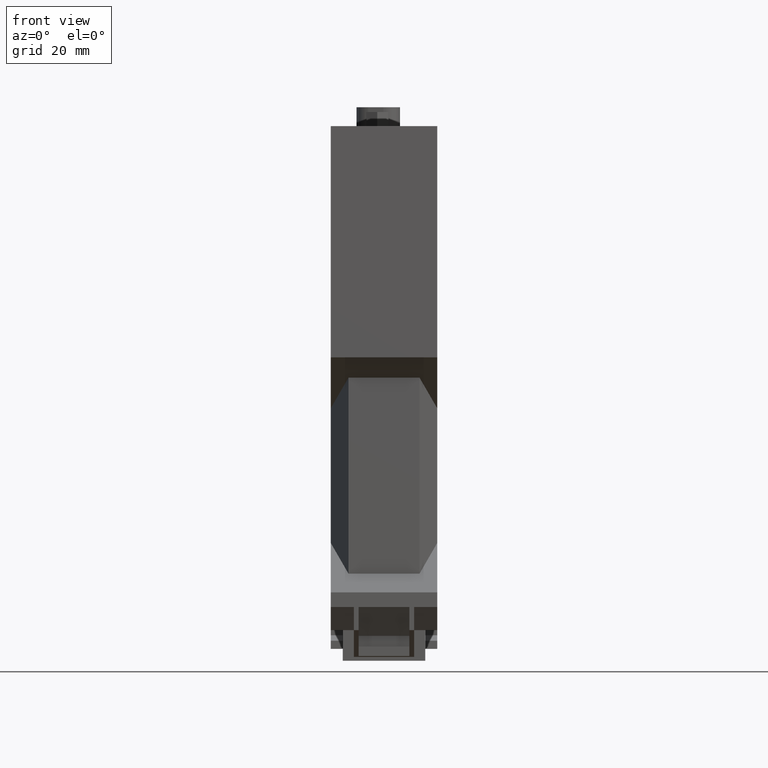
[diagram: clean part render]
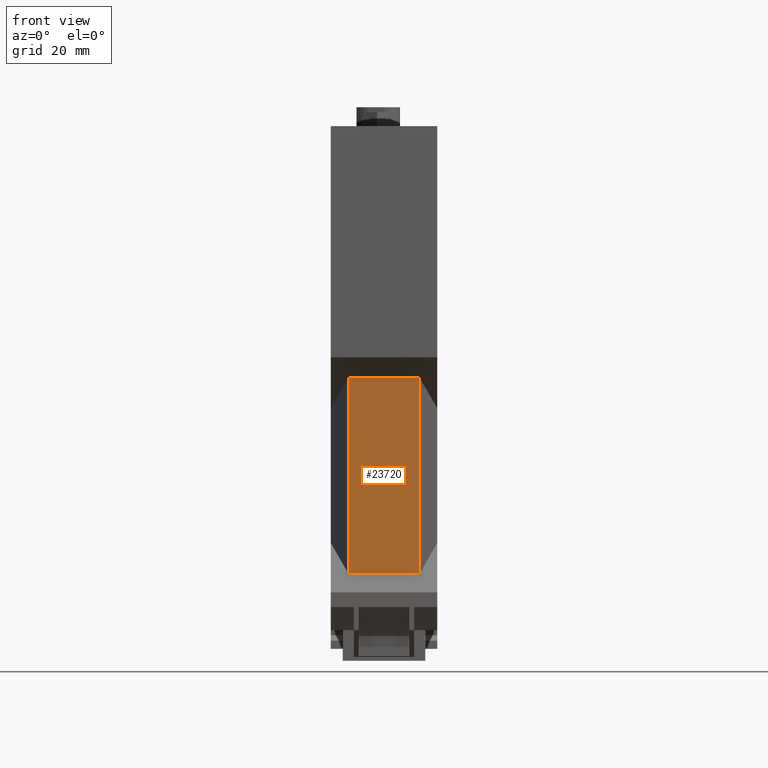
[diagram: same view with one face highlighted and labeled with its STEP entity id]
A machine part, front view. The second image highlights one B-rep face of the part: STEP entity #23720.
In plain terms, the highlighted planar face has unit normal (-0, -1, 0).
Its self-contained STEP definition (entity closure, byte-faithful):
#3920=CARTESIAN_POINT('',(-60.0500000000058,11.9999999999957,
18.8472232502649));
#3930=VERTEX_POINT('',#3920);
#3960=CARTESIAN_POINT('',(-60.0500000000057,24.,18.8472232502649));
#3970=DIRECTION('',(6.59999999999827E-15,1.,3.81051177665051E-15));
#3980=VECTOR('',#3970,1.);
#3990=LINE('',#3960,#3980);
#4000=CARTESIAN_POINT('',(-60.0500000000055,53.6000000000048,
18.8472232502651));
#4010=VERTEX_POINT('',#4000);
#4020=EDGE_CURVE('',#3930,#4010,#3990,.T.);
#4300=CARTESIAN_POINT('',(-60.0499999999987,53.599999999998,
3.75277674973081));
#4310=VERTEX_POINT('',#4300);
#4340=CARTESIAN_POINT('',(-60.0499999999989,24.,3.75277674973092));
#4350=DIRECTION('',(-6.60000000000173E-15,-1.,3.8105117766525E-15));
#4360=VECTOR('',#4350,1.);
#4370=LINE('',#4340,#4360);
#4380=CARTESIAN_POINT('',(-60.049999999999,12.0000000000026,
3.75277674973097));
#4390=VERTEX_POINT('',#4380);
#4400=EDGE_CURVE('',#4310,#4390,#4370,.T.);
#23370=CARTESIAN_POINT('',(-60.0499999999973,12.0000000000043,0.));
#23380=DIRECTION('',(4.52800000000003E-13,4.52799999999919E-13,-1.));
#23390=VECTOR('',#23380,1.);
#23400=LINE('',#23370,#23390);
#23410=EDGE_CURVE('',#3930,#4390,#23400,.T.);
#23560=CARTESIAN_POINT('',(-60.050000000002,68.5000000000004,
11.299999999981));
#23570=DIRECTION('',(-1.,6.6E-15,-4.528E-13));
#23580=DIRECTION('',(-4.528E-13,0.,1.));
#23590=AXIS2_PLACEMENT_3D('',#23560,#23570,#23580);
#23600=PLANE('',#23590);
#23610=ORIENTED_EDGE('',*,*,#4400,.T.);
#23620=CARTESIAN_POINT('',(-60.049999999997,53.5999999999963,0.));
#23630=DIRECTION('',(4.52799999999997E-13,-4.52799999999993E-13,-1.));
#23640=VECTOR('',#23630,1.);
#23650=LINE('',#23620,#23640);
#23660=EDGE_CURVE('',#4010,#4310,#23650,.T.);
#23670=ORIENTED_EDGE('',*,*,#23660,.T.);
#23680=ORIENTED_EDGE('',*,*,#4020,.T.);
#23690=ORIENTED_EDGE('',*,*,#23410,.F.);
#23700=EDGE_LOOP('',(#23690,#23680,#23670,#23610));
#23710=FACE_OUTER_BOUND('',#23700,.T.);
#23720=ADVANCED_FACE('',(#23710),#23600,.T.);